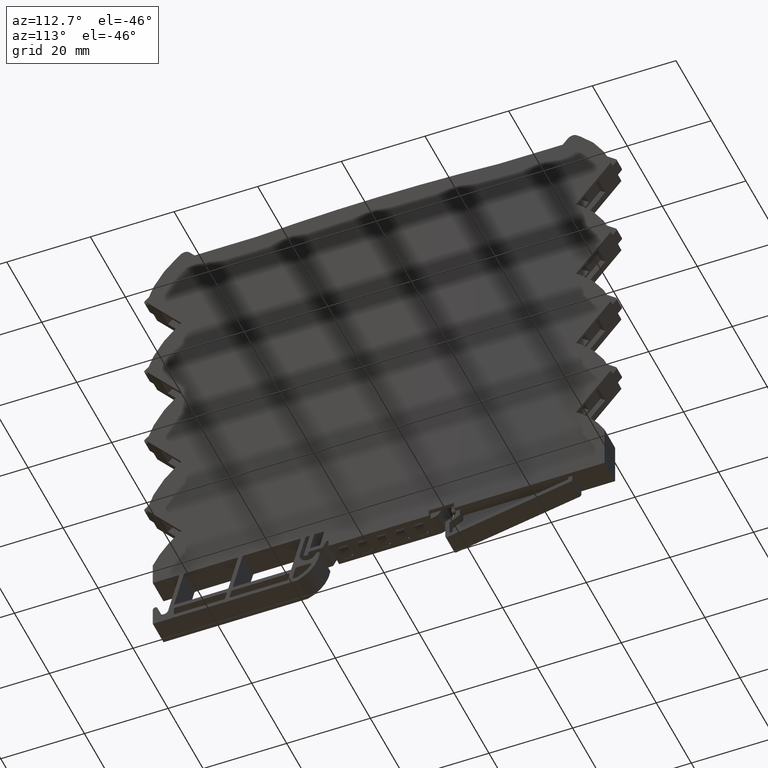
[diagram: clean part render]
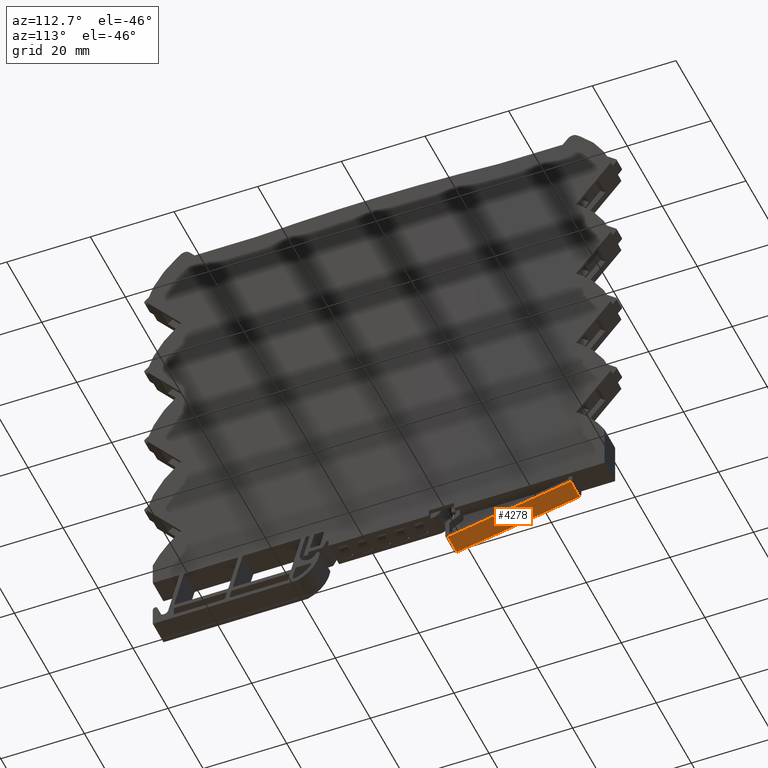
[diagram: same view with one face highlighted and labeled with its STEP entity id]
A machine part, auxiliary view. The second image highlights one B-rep face of the part: STEP entity #4278.
In plain terms, the highlighted planar face has unit normal (0, 0.1954, -0.9807).
Its self-contained STEP definition (entity closure, byte-faithful):
#27 = CARTESIAN_POINT ( 'NONE',  ( -0.1200787401574787000, 0.6102362204724411932, -4.431366127813483047 ) ) ;
#839 = VECTOR ( 'NONE', #8057, 39.37007874015748143 ) ;
#1244 = CARTESIAN_POINT ( 'NONE',  ( 0.08070866141732378762, 0.6102362204724411932, -4.431366127813483047 ) ) ;
#1717 = LINE ( 'NONE', #14637, #10179 ) ;
#1757 = PLANE ( 'NONE',  #5303 ) ;
#1806 = CARTESIAN_POINT ( 'NONE',  ( 0.08070866141732330190, 1.791348849965429979, -4.196068784370048377 ) ) ;
#2019 = VERTEX_POINT ( 'NONE', #3989 ) ;
#2025 = DIRECTION ( 'NONE',  ( -1.000000000000000000, 0.000000000000000000, -0.000000000000000000 ) ) ;
#2219 = EDGE_LOOP ( 'NONE', ( #11998, #8033, #11653, #4309 ) ) ;
#2983 = VERTEX_POINT ( 'NONE', #5158 ) ;
#3222 = CARTESIAN_POINT ( 'NONE',  ( 0.08070866141732371823, 0.6337672718100474389, -4.426678349755817088 ) ) ;
#3615 = EDGE_CURVE ( 'NONE', #2983, #5090, #4491, .T. ) ;
#3989 = CARTESIAN_POINT ( 'NONE',  ( -0.1200787401574795882, 0.6337672718100474389, -4.426678349755817088 ) ) ;
#4278 = ADVANCED_FACE ( 'NONE', ( #12583 ), #1757, .T. ) ;
#4309 = ORIENTED_EDGE ( 'NONE', *, *, #8192, .T. ) ;
#4491 = LINE ( 'NONE', #13937, #839 ) ;
#5090 = VERTEX_POINT ( 'NONE', #1806 ) ;
#5158 = CARTESIAN_POINT ( 'NONE',  ( -0.1200787401574792551, 1.791348849965429979, -4.196068784370048377 ) ) ;
#5303 = AXIS2_PLACEMENT_3D ( 'NONE', #13448, #12516, #5327 ) ;
#5327 = DIRECTION ( 'NONE',  ( 0.000000000000000000, 0.9807281317789258157, 0.1953774079504020933 ) ) ;
#5473 = VERTEX_POINT ( 'NONE', #3222 ) ;
#6437 = VECTOR ( 'NONE', #11559, 39.37007874015748854 ) ;
#8033 = ORIENTED_EDGE ( 'NONE', *, *, #3615, .T. ) ;
#8057 = DIRECTION ( 'NONE',  ( 1.000000000000000000, -0.000000000000000000, 0.000000000000000000 ) ) ;
#8192 = EDGE_CURVE ( 'NONE', #5473, #2019, #1717, .T. ) ;
#10179 = VECTOR ( 'NONE', #2025, 39.37007874015748143 ) ;
#10320 = DIRECTION ( 'NONE',  ( -0.000000000000000000, -0.9807281317789258157, -0.1953774079504020933 ) ) ;
#10489 = LINE ( 'NONE', #27, #6437 ) ;
#11559 = DIRECTION ( 'NONE',  ( 0.000000000000000000, 0.9807281317789258157, 0.1953774079504020933 ) ) ;
#11653 = ORIENTED_EDGE ( 'NONE', *, *, #13639, .T. ) ;
#11843 = LINE ( 'NONE', #1244, #13614 ) ;
#11998 = ORIENTED_EDGE ( 'NONE', *, *, #13305, .T. ) ;
#12516 = DIRECTION ( 'NONE',  ( 0.000000000000000000, 0.1953774079504021211, -0.9807281317789259267 ) ) ;
#12583 = FACE_OUTER_BOUND ( 'NONE', #2219, .T. ) ;
#13305 = EDGE_CURVE ( 'NONE', #2019, #2983, #10489, .T. ) ;
#13448 = CARTESIAN_POINT ( 'NONE',  ( -1.278646660328822460, 0.6102362204724411932, -4.431366127813483047 ) ) ;
#13614 = VECTOR ( 'NONE', #10320, 39.37007874015748854 ) ;
#13639 = EDGE_CURVE ( 'NONE', #5090, #5473, #11843, .T. ) ;
#13937 = CARTESIAN_POINT ( 'NONE',  ( -1.278646660328822460, 1.791348849965430201, -4.196068784370048377 ) ) ;
#14637 = CARTESIAN_POINT ( 'NONE',  ( -1.278646660328822460, 0.6337672718100474389, -4.426678349755817088 ) ) ;